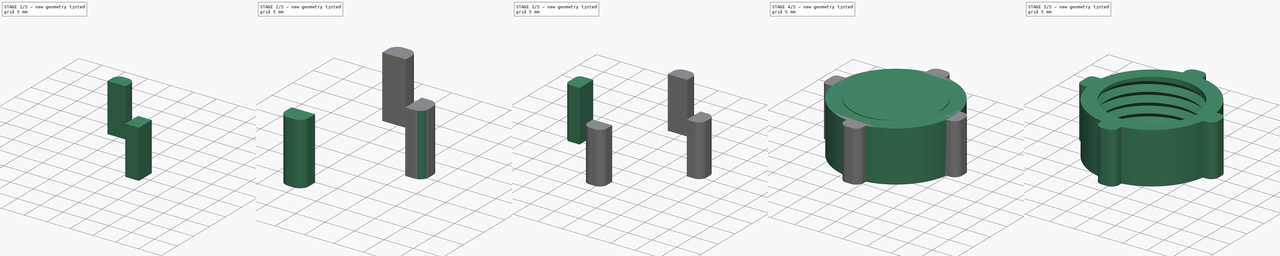
[diagram: build sequence overview — one tinted view per stage of 5, left to right]
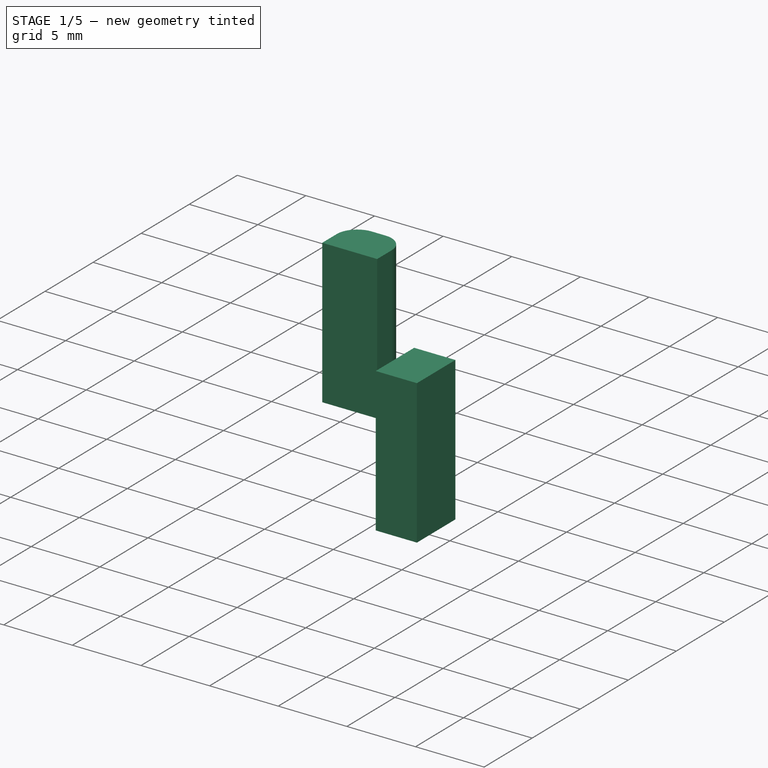
[diagram: stage 1 of 5 — iso view after this stage's code; geometry added in this stage tinted green]
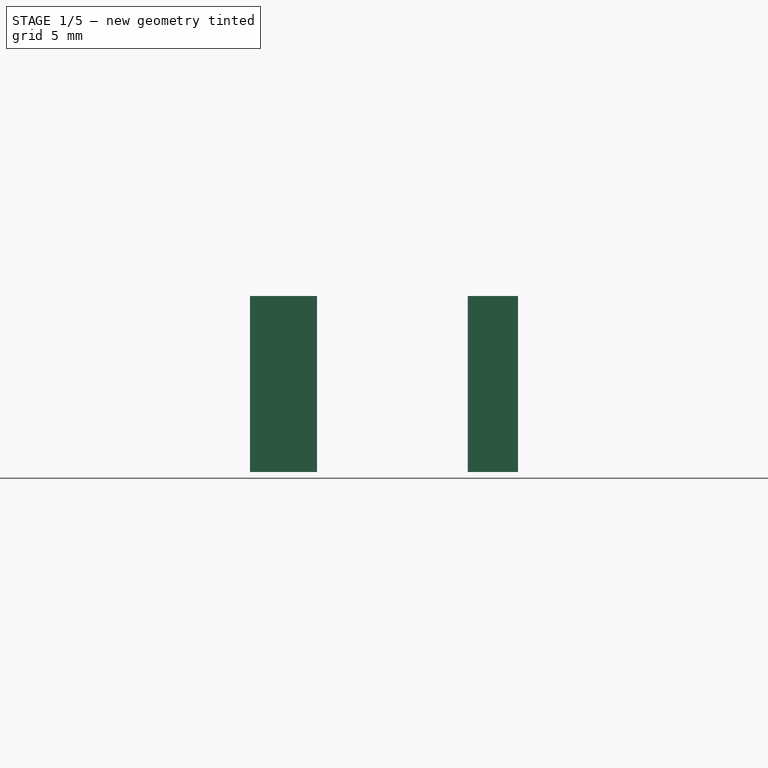
[diagram: stage 1 of 5 — front view after this stage's code; geometry added in this stage tinted green]
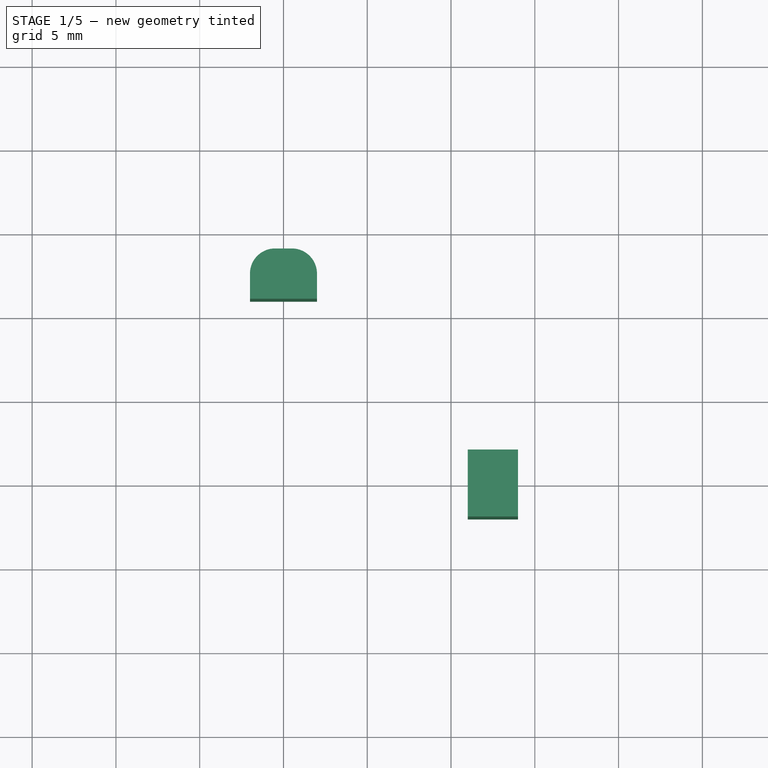
[diagram: stage 1 of 5 — top view after this stage's code; geometry added in this stage tinted green]
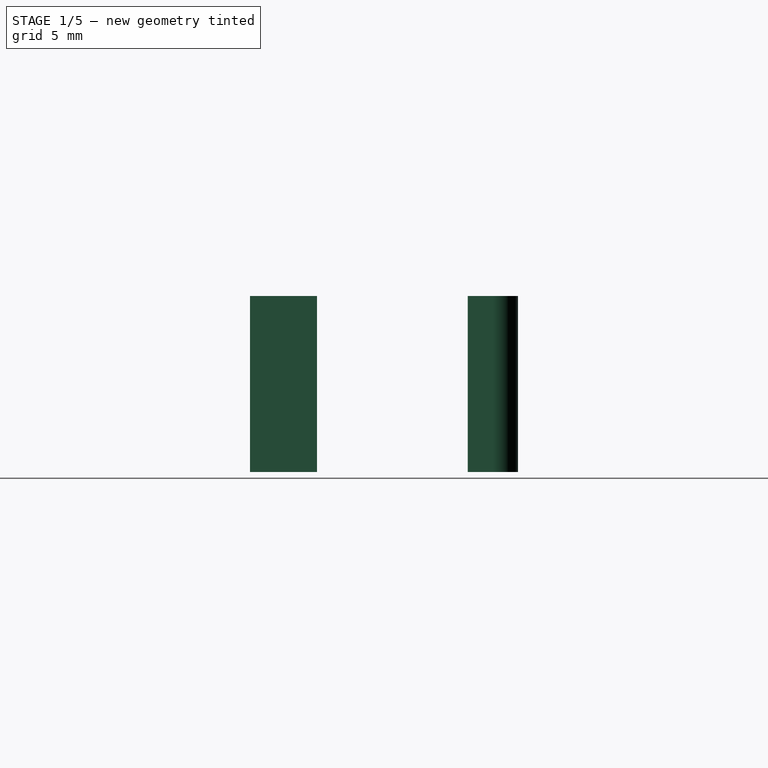
[diagram: stage 1 of 5 — right view after this stage's code; geometry added in this stage tinted green]
FCSTD DOCUMENT  (FreeCAD 0.16R6712 (Git))
Label: tuerca_dremel_v2
License: All rights reserved
LicenseURL: http://en.wikipedia.org/wiki/All_rights_reserved
objects: Part::Box×4, Part::Fillet×4, Part::MultiFuse×3, Part::Cylinder×2, Part::Helix×1, Sketcher::SketchObject×1, Part::Sweep×1, Part::Cut×1, Part::Feature×1
note: 18 computed .brp shape members not serialized (recipe doc carries the construction recipe); baked Part::Feature solids carry a one-line shape summary decoded from their .brp

FEATURE [Part::Box] Box  label="Cubo"
  Height = 10.5
  Length = 3
  Placement = pos=(11,-2,0) rot=(0,0,1;0rad)
  Width = 4
FEATURE [Part::Box] Box002  label="Cubo002"
  Height = 10.5
  Length = 4
  Placement = pos=(-2,11,0) rot=(0,0,1;0rad)
  Width = 3
FEATURE [Part::Fillet] Fillet003
  Base = -> Box002
  Edges = 2 edges r=1.5: [Edge3,Edge7]
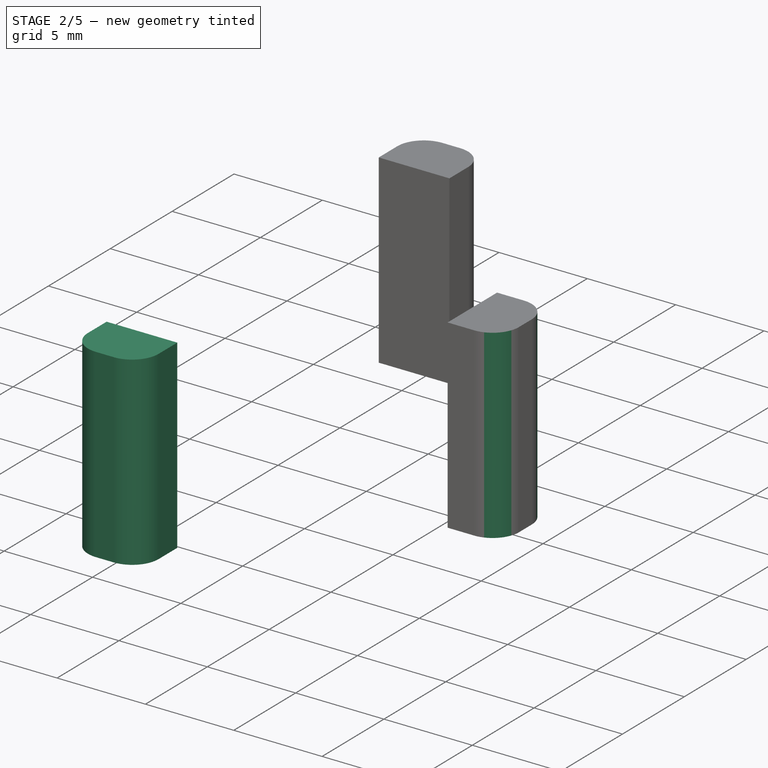
[diagram: stage 2 of 5 — iso view after this stage's code; geometry added in this stage tinted green]
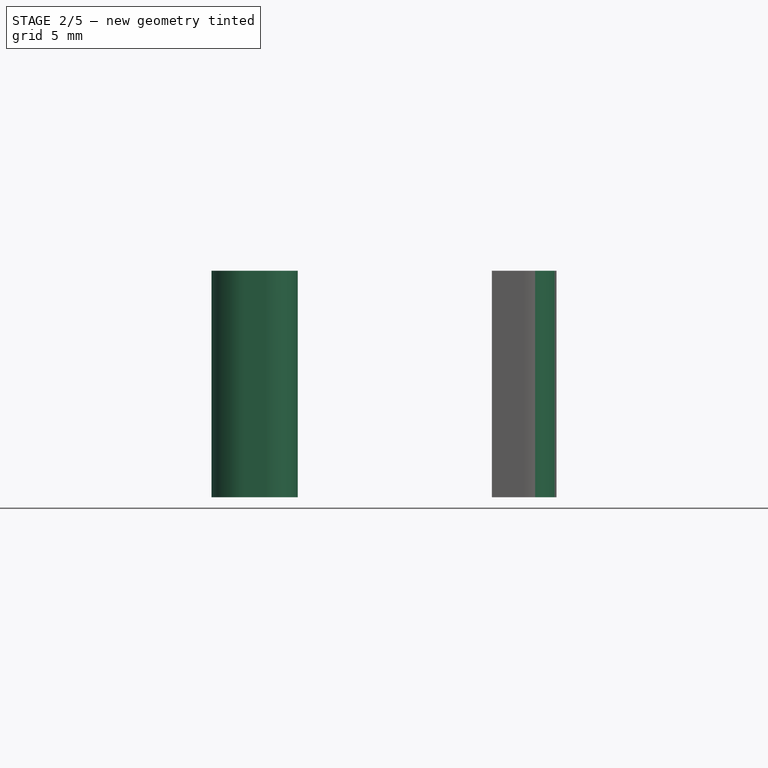
[diagram: stage 2 of 5 — front view after this stage's code; geometry added in this stage tinted green]
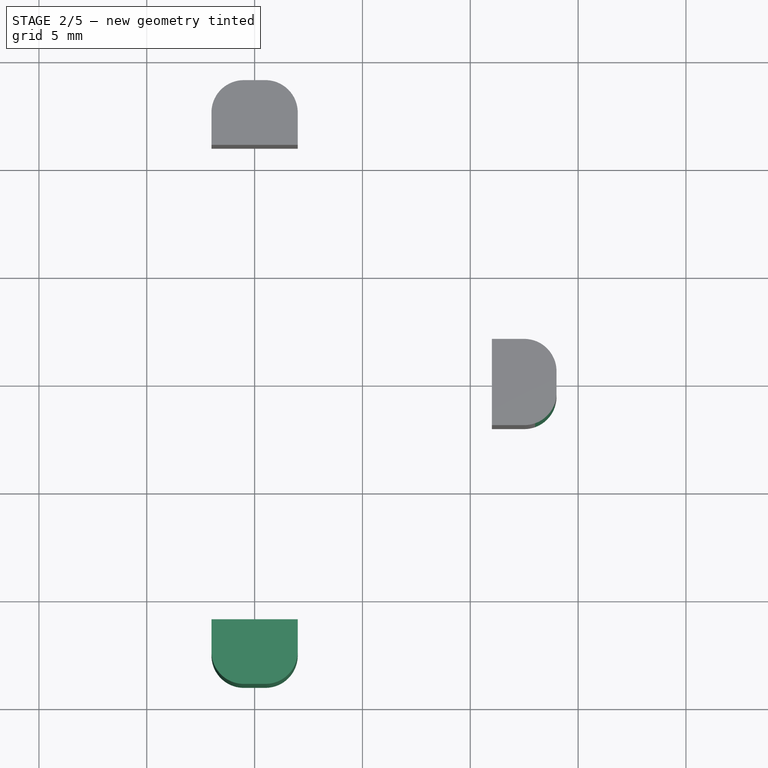
[diagram: stage 2 of 5 — top view after this stage's code; geometry added in this stage tinted green]
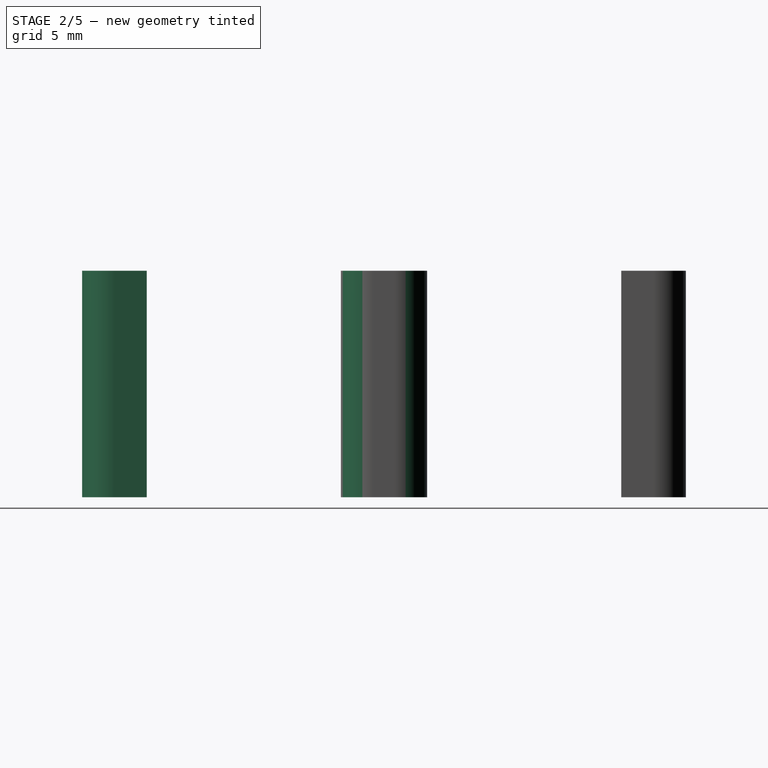
[diagram: stage 2 of 5 — right view after this stage's code; geometry added in this stage tinted green]
FEATURE [Part::Box] Box003  label="Cubo003"
  Height = 10.5
  Length = 4
  Placement = pos=(-2,-14,0) rot=(0,0,1;0rad)
  Width = 3
FEATURE [Part::Fillet] Fillet001
  Base = -> Box003
  Edges = 2 edges r=1.5: [Edge1,Edge5]
FEATURE [Part::Fillet] Fillet002
  Base = -> Box
  Edges = 2 edges r=1.5: [Edge5,Edge7]
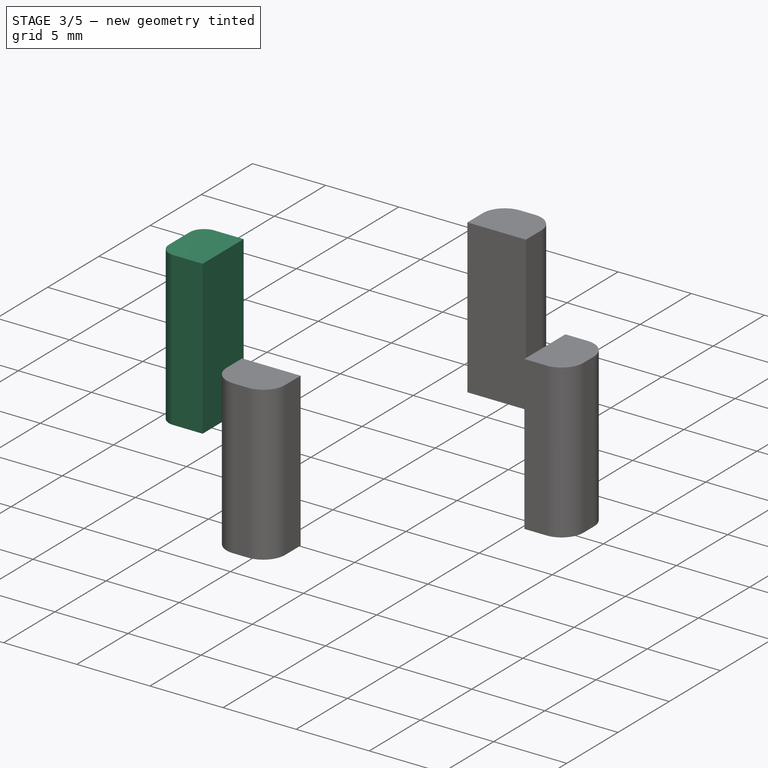
[diagram: stage 3 of 5 — iso view after this stage's code; geometry added in this stage tinted green]
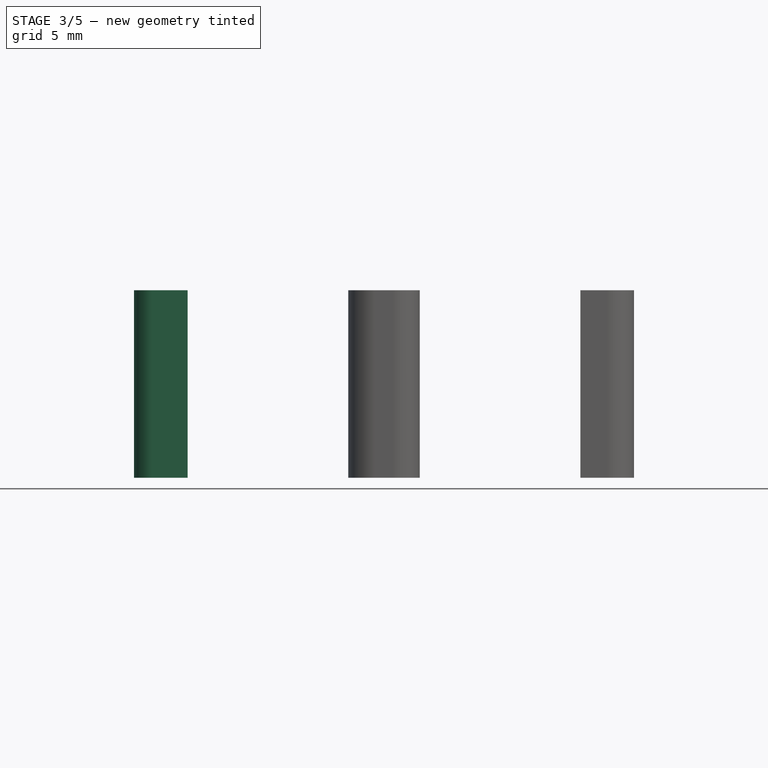
[diagram: stage 3 of 5 — front view after this stage's code; geometry added in this stage tinted green]
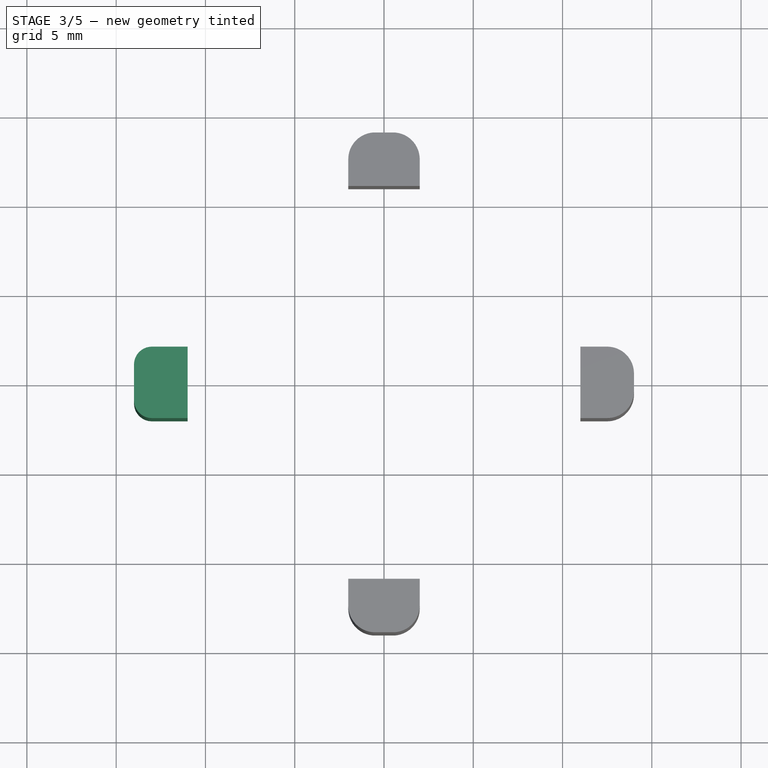
[diagram: stage 3 of 5 — top view after this stage's code; geometry added in this stage tinted green]
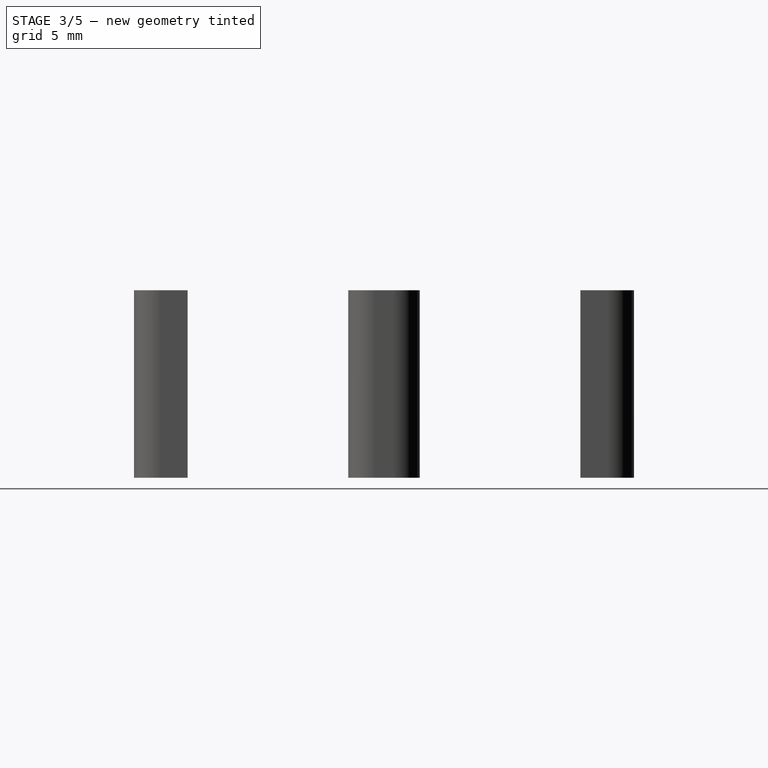
[diagram: stage 3 of 5 — right view after this stage's code; geometry added in this stage tinted green]
FEATURE [Part::Box] Box001  label="Cubo001"
  Height = 10.5
  Length = 3
  Placement = pos=(-14,-2,0) rot=(0,0,1;0rad)
  Width = 4
FEATURE [Part::Fillet] Fillet
  Base = -> Box001
  Edges = 2 edges r=1: [Edge1,Edge3]
FEATURE [Part::MultiFuse] Fusion001
  Shapes = -> [Fillet,Fillet001,Fillet002,Fillet003]
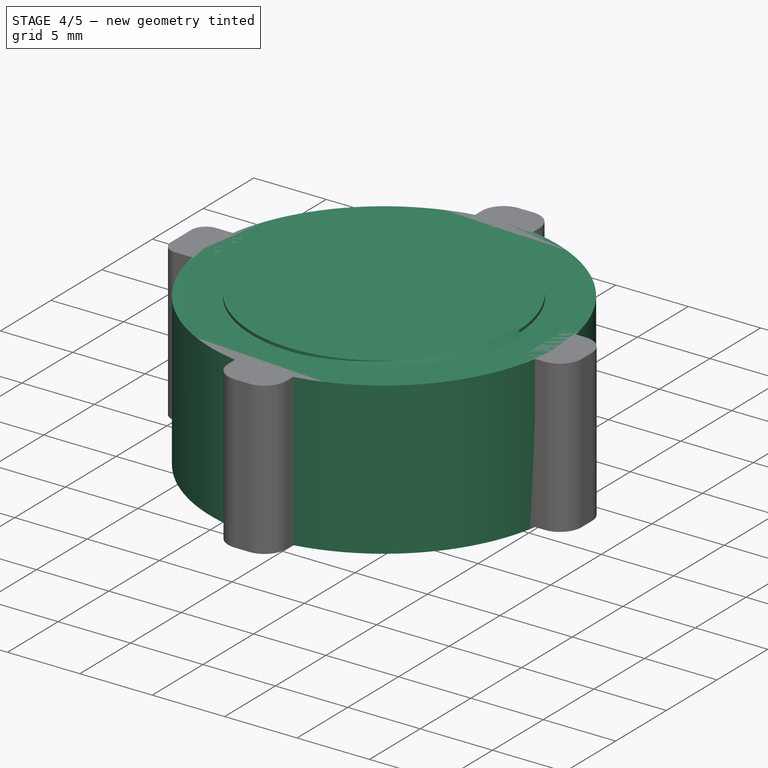
[diagram: stage 4 of 5 — iso view after this stage's code; geometry added in this stage tinted green]
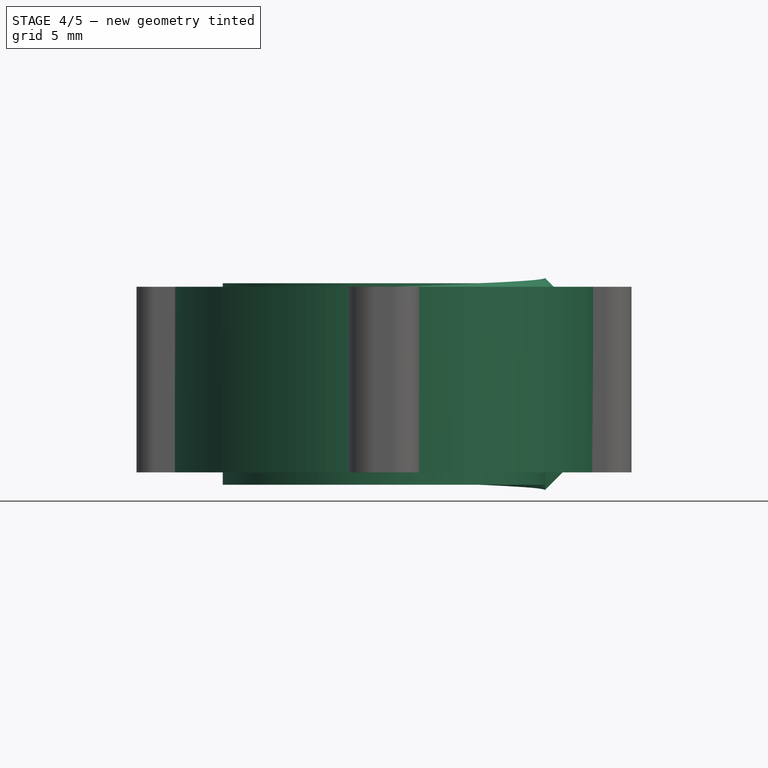
[diagram: stage 4 of 5 — front view after this stage's code; geometry added in this stage tinted green]
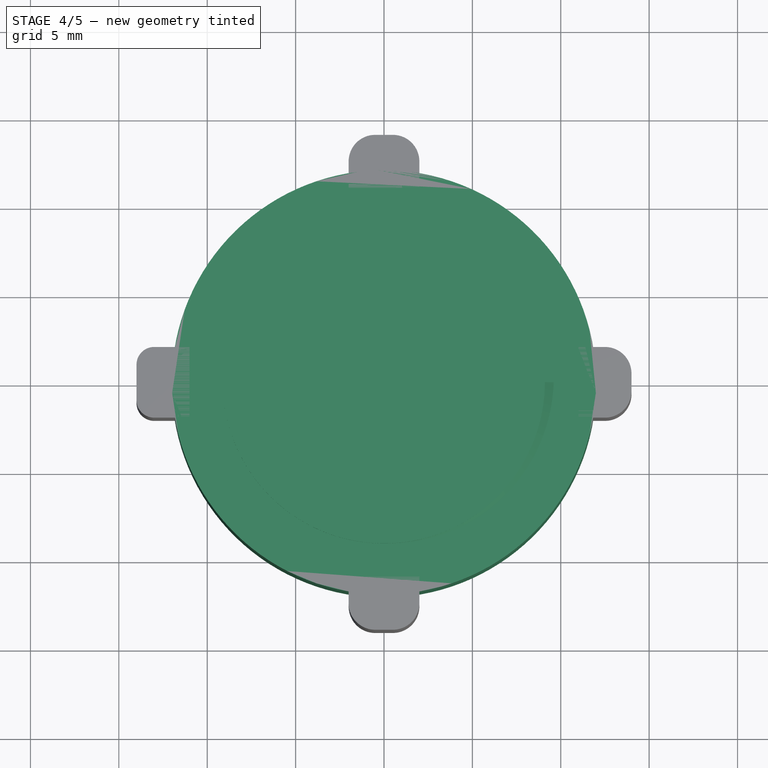
[diagram: stage 4 of 5 — top view after this stage's code; geometry added in this stage tinted green]
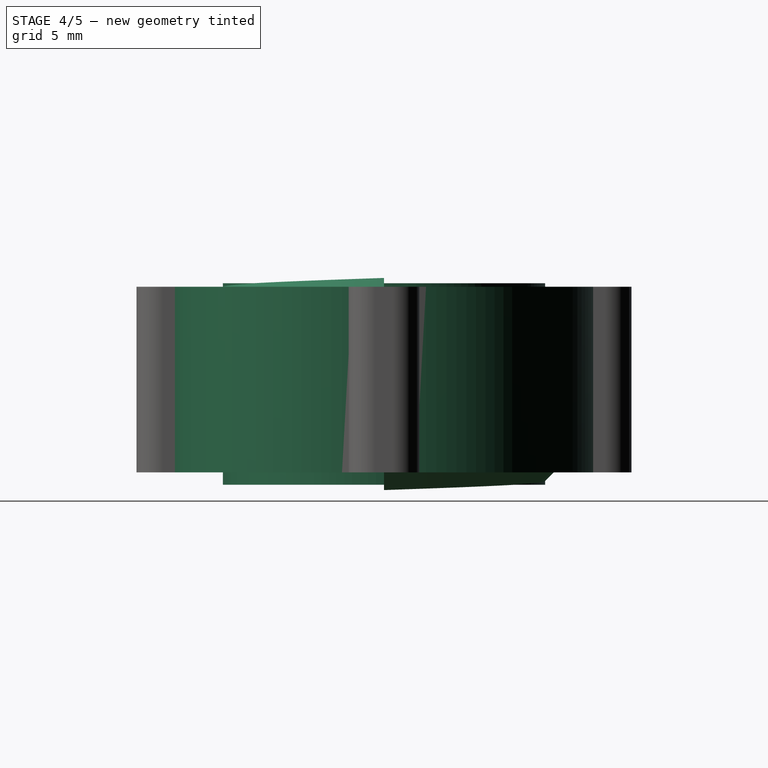
[diagram: stage 4 of 5 — right view after this stage's code; geometry added in this stage tinted green]
FEATURE [Part::Helix] Helix001  label="Espiral001"
  Angle = 0
  Height = 10
  LocalCoord = 0
  Pitch = 2
  Radius = 9.3
  Style = 1
FEATURE [Sketcher::SketchObject] Sketch
  Placement = pos=(0,0,0) rot=(1,0,0;1.5708rad)
  sketch-geometry (3):
    g0: LineSegment StartX=9.1 StartY=1 StartZ=0 EndX=9.1 EndY=-1 EndZ=0
    g1: LineSegment StartX=9.1 StartY=-1 StartZ=0 EndX=10.1 EndY=0 EndZ=0
    g2: LineSegment StartX=10.1 StartY=0 StartZ=0 EndX=9.1 EndY=1 EndZ=0
  constraints (9):
    c: Vertical(g0)
    c: Coincident(g0,g1)
    c: PointOnObject(g1,g-1)
    c: Coincident(g1,g2)
    c: Coincident(g2,g0)
    c: DistanceX(g-1,g0) = 9.1
    c: DistanceY(g0,g0) = 2
    c: DistanceY(g0,g-1) = 1
    c: DistanceX(g0,g1) = 1
FEATURE [Part::Cylinder] Cylinder  label="Cilindro"
  Angle = 360
  Height = 11.4
  Placement = pos=(0,0,-0.7) rot=(0,0,1;0rad)
  Radius = 9.12
FEATURE [Part::Sweep] Sweep
  Frenet = true
  Sections = -> [Sketch]
  Solid = true
  Spine = -> Helix001 [Edge1,Edge2,Edge3,Edge4,Edge5]
  Transition = 1
FEATURE [Part::Cylinder] Cylinder001  label="Cilindro001"
  Angle = 360
  Height = 10.5
  Radius = 12
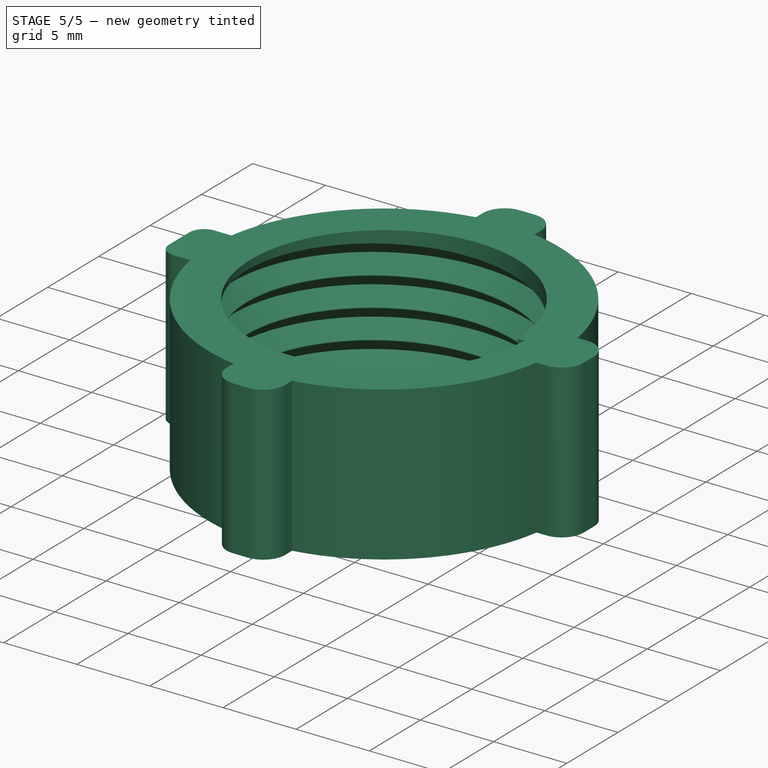
[diagram: stage 5 of 5 — iso view after this stage's code; geometry added in this stage tinted green]
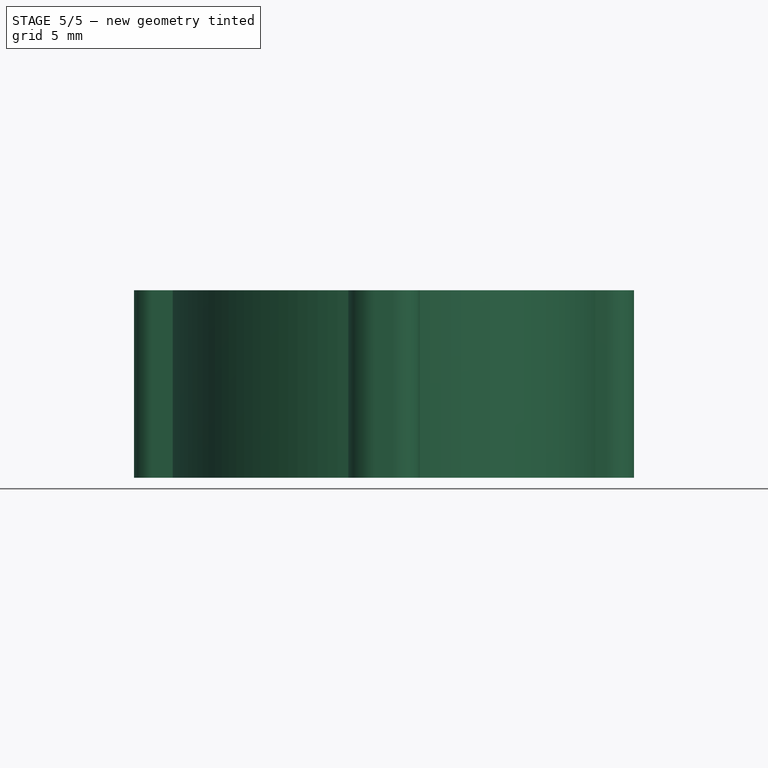
[diagram: stage 5 of 5 — front view after this stage's code; geometry added in this stage tinted green]
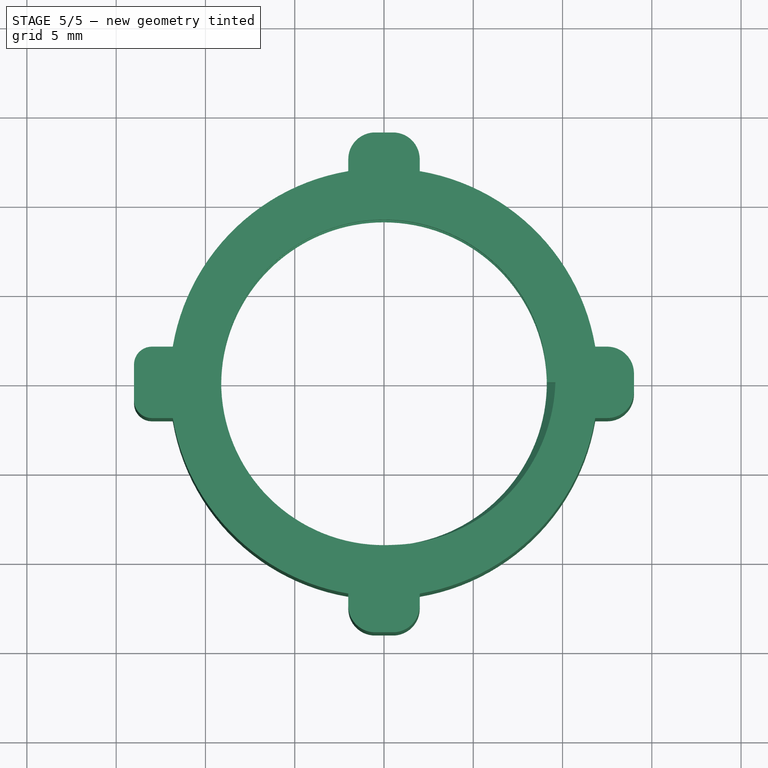
[diagram: stage 5 of 5 — top view after this stage's code; geometry added in this stage tinted green]
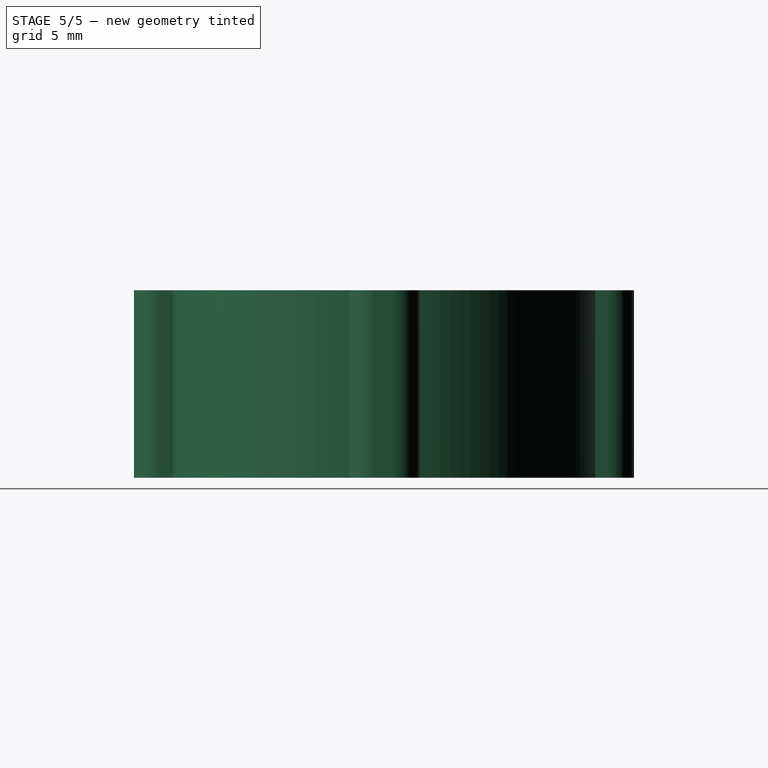
[diagram: stage 5 of 5 — right view after this stage's code; geometry added in this stage tinted green]
FEATURE [Part::MultiFuse] Fusion
  Shapes = -> [Cylinder,Sweep]
FEATURE [Part::Cut] Cut
  Base = -> Cylinder001
  Tool = -> Fusion
FEATURE [Part::MultiFuse] Fusion002
  Shapes = -> [Cut,Fusion001]
FEATURE [Part::Feature] Fusion002001  label="Fusion003"
  shape: bbox 30.25 x 29.56 x 12 mm, 39 faces (baked)
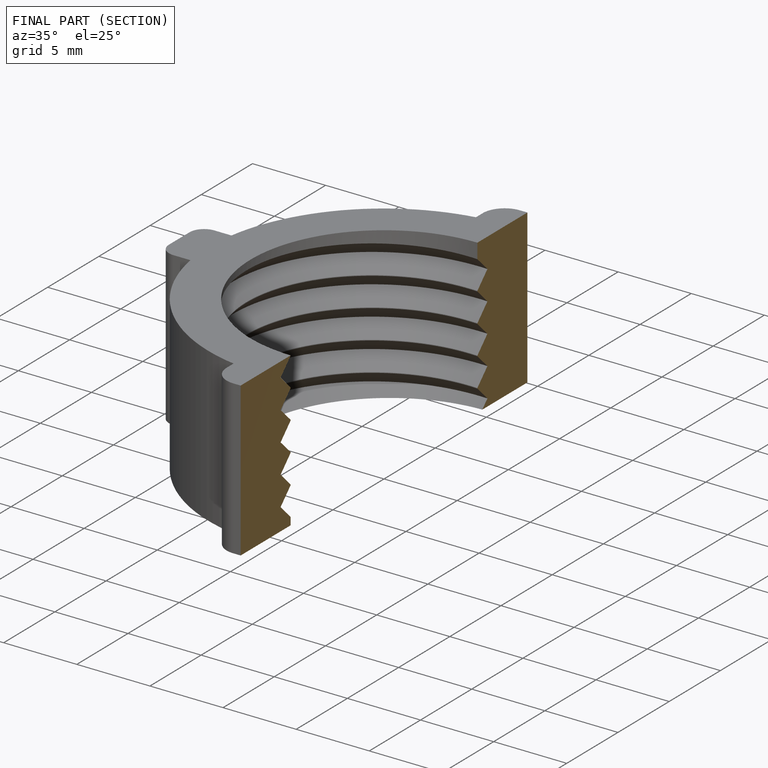
[diagram: finished part — half-section view (interior)]
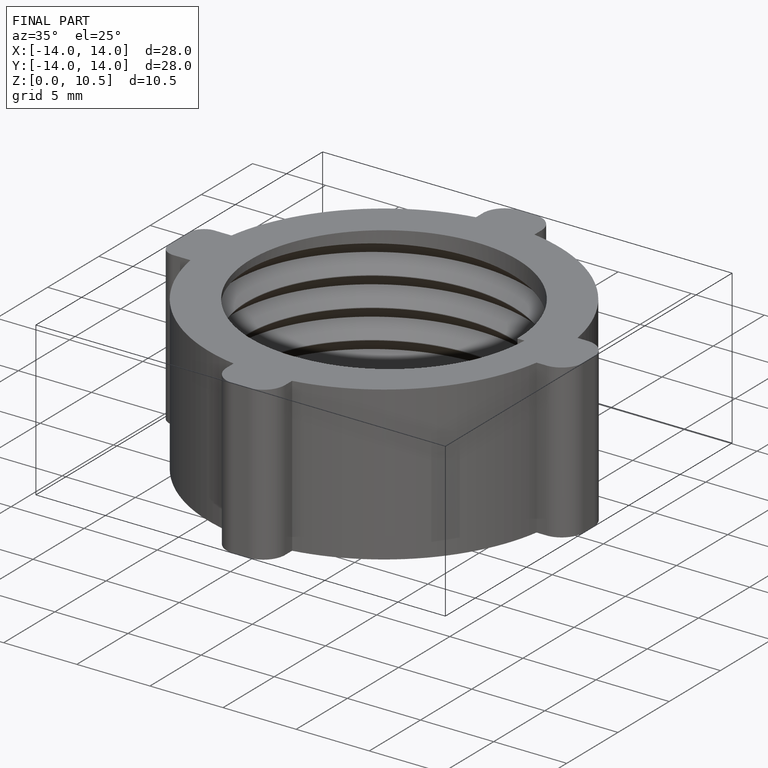
[diagram: finished part — iso view with bounding-box wireframe]
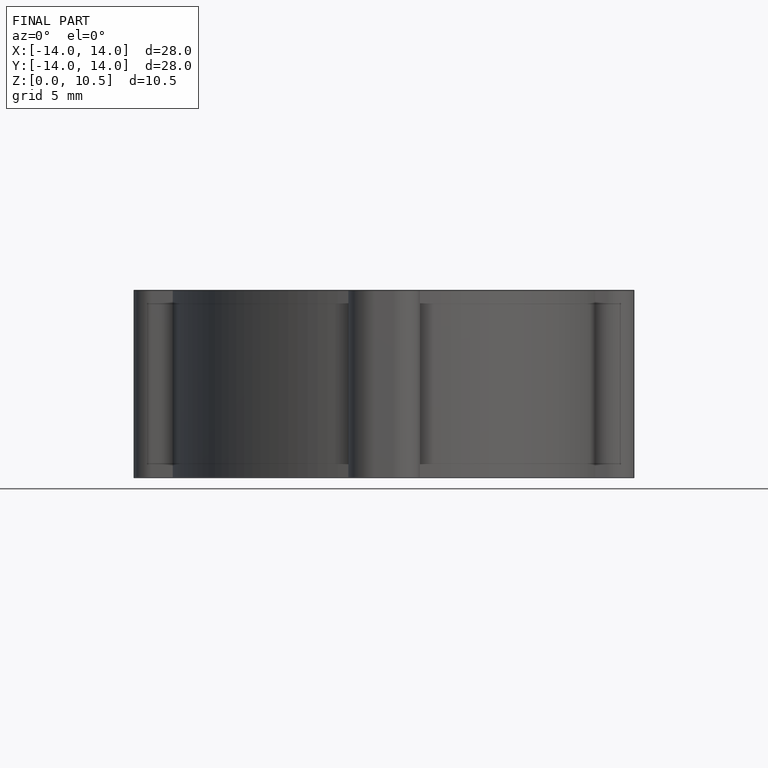
[diagram: finished part — front view with bounding-box wireframe]
